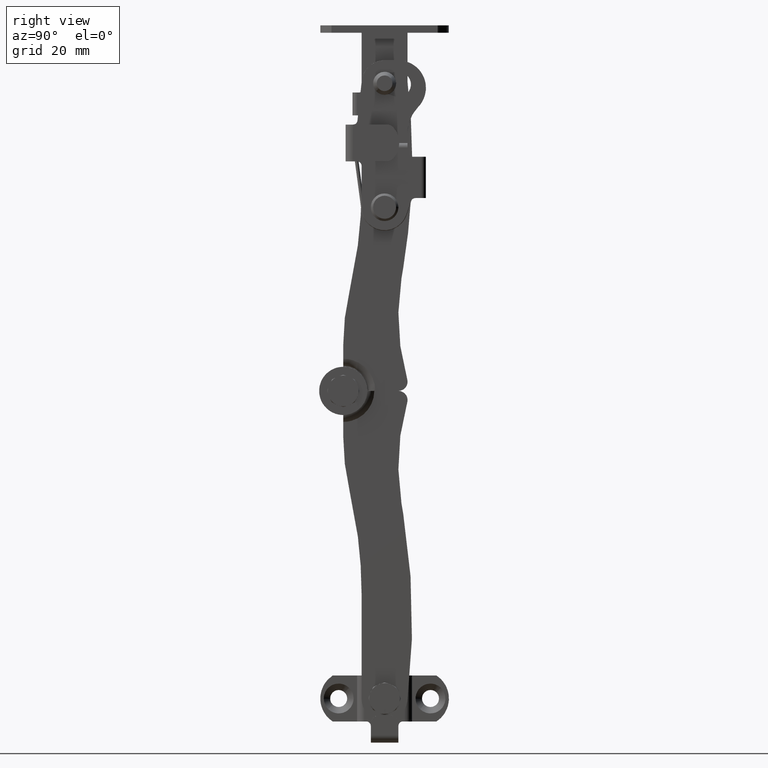
[diagram: clean part render]
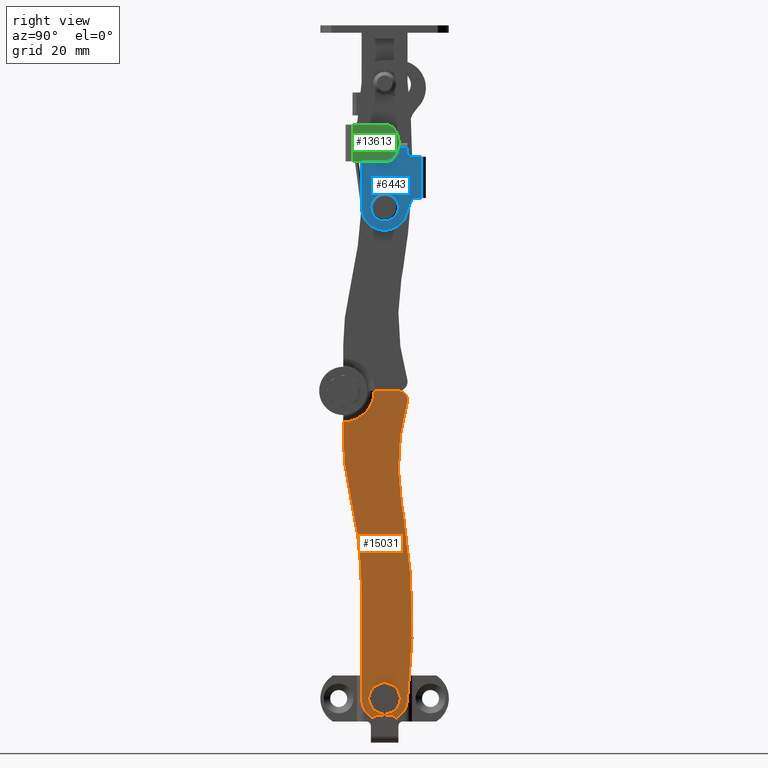
[diagram: same view with three faces highlighted in distinct colors, each labeled with its STEP entity id]
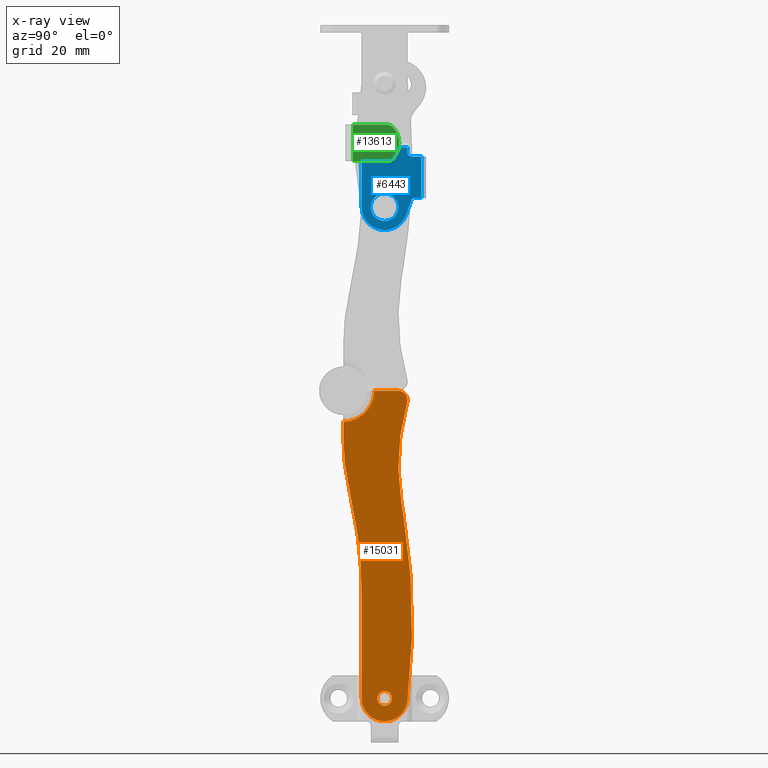
[diagram: x-ray of the same camera — body ghosted, the three highlighted faces saturated]
A machine part, right view with three faces highlighted in distinct colors.
The next image is the same camera in x-ray (body ghosted, the three faces saturated) — at least one of them is partly hidden behind the body in this view.
Their STEP definitions:

[orange] entity #15031 — the highlighted face is a freeform B-spline surface patch.
#14472=CARTESIAN_POINT('',(-3.169029E-010,-10.101381134666260,-65.839434653467549));
#14473=VERTEX_POINT('',#14472);
#14474=CARTESIAN_POINT('',(4.770490E-015,-10.600015391685330,-67.000040789392287));
#14475=VERTEX_POINT('',#14474);
#14476=CARTESIAN_POINT('',(-3.169029E-010,-10.101381134666260,-65.839434653467549));
#14477=CARTESIAN_POINT('',(-2.813395E-010,-10.238861737973220,-65.969678606335279));
#14478=CARTESIAN_POINT('',(-1.845579E-010,-10.499113599575050,-66.324120892770978));
#14479=CARTESIAN_POINT('',(-6.650476E-011,-10.600453356908231,-66.756464563541599));
#14480=CARTESIAN_POINT('',(4.770490E-015,-10.600015391685330,-67.000040789392287));
#14481=B_SPLINE_CURVE_WITH_KNOTS('',3,(#14476,#14477,#14478,#14479,#14480),.UNSPECIFIED.,.F.,.U.,(4,1,4),(0.000000161663289,0.568169746440144,1.298671892176562),.UNSPECIFIED.);
#14482=EDGE_CURVE('',#14473,#14475,#14481,.T.);
#14484=CARTESIAN_POINT('',(4.770490E-015,-9.000015391708480,-68.600032182344108));
#14485=VERTEX_POINT('',#14484);
#14486=CARTESIAN_POINT('',(4.770490E-015,-10.600015391685330,-67.000040789392287));
#14487=CARTESIAN_POINT('',(4.770490E-015,-10.600382991105320,-67.235734685484786));
#14488=CARTESIAN_POINT('',(4.770490E-015,-10.499872694923880,-67.680451893718242));
#14489=CARTESIAN_POINT('',(4.770490E-015,-10.118423913202600,-68.195010734420407));
#14490=CARTESIAN_POINT('',(4.770490E-015,-9.602007401112095,-68.521796163772976));
#14491=CARTESIAN_POINT('',(4.770490E-015,-9.209486720408329,-68.600247263814069));
#14492=CARTESIAN_POINT('',(4.770490E-015,-9.000015391708480,-68.600032182344108));
#14493=B_SPLINE_CURVE_WITH_KNOTS('',3,(#14486,#14487,#14488,#14489,#14490,#14491,#14492),.UNSPECIFIED.,.F.,.U.,(4,1,1,1,4),(0.000000512667430,0.706942690576745,1.335292474191123,1.885141136479035,2.513521361735005),.UNSPECIFIED.);
#14494=EDGE_CURVE('',#14475,#14485,#14493,.T.);
#14496=CARTESIAN_POINT('',(-3.169029E-010,-7.898649648750701,-68.160629711220651));
#14497=VERTEX_POINT('',#14496);
#14498=CARTESIAN_POINT('',(4.770490E-015,-9.000015391708480,-68.600032182344108));
#14499=CARTESIAN_POINT('',(-5.097098E-011,-8.822856744413079,-68.600129785540730));
#14500=CARTESIAN_POINT('',(-1.674700E-010,-8.417981840181314,-68.532088200488786));
#14501=CARTESIAN_POINT('',(-2.694148E-010,-8.063687522516517,-68.317688110143450));
#14502=CARTESIAN_POINT('',(-3.169029E-010,-7.898649648750701,-68.160629711220651));
#14503=B_SPLINE_CURVE_WITH_KNOTS('',3,(#14498,#14499,#14500,#14501,#14502),.UNSPECIFIED.,.F.,.U.,(4,1,4),(0.000000229337179,0.531521888385861,1.214862062338679),.UNSPECIFIED.);
#14504=EDGE_CURVE('',#14485,#14497,#14503,.T.);
#14571=CARTESIAN_POINT('',(4.770490E-015,-9.000015391708480,-65.400032182344091));
#14572=VERTEX_POINT('',#14571);
#14573=CARTESIAN_POINT('',(4.770490E-015,-9.000015391708480,-65.400032182344091));
#14574=CARTESIAN_POINT('',(-5.097230E-011,-9.177178630621137,-65.399931409473780));
#14575=CARTESIAN_POINT('',(-1.674658E-010,-9.582034578362686,-65.467987456163399));
#14576=CARTESIAN_POINT('',(-2.694189E-010,-9.936357518900206,-65.682363348895180));
#14577=CARTESIAN_POINT('',(-3.169029E-010,-10.101381134666260,-65.839434653467549));
#14578=B_SPLINE_CURVE_WITH_KNOTS('',3,(#14573,#14574,#14575,#14576,#14577),.UNSPECIFIED.,.F.,.U.,(4,1,4),(0.000000229337201,0.531521888385876,1.214862062338690),.UNSPECIFIED.);
#14579=EDGE_CURVE('',#14572,#14473,#14578,.T.);
#14614=CARTESIAN_POINT('',(4.770490E-015,-7.400015391731631,-67.000023575295884));
#14615=VERTEX_POINT('',#14614);
#14616=CARTESIAN_POINT('',(-3.169029E-010,-7.898649648750701,-68.160629711220651));
#14617=CARTESIAN_POINT('',(-2.712084E-010,-7.721664788273344,-67.993282759291048));
#14618=CARTESIAN_POINT('',(-1.698728E-010,-7.477809309449411,-67.622162348807393));
#14619=CARTESIAN_POINT('',(-5.170620E-011,-7.399856839819897,-67.189403398889240));
#14620=CARTESIAN_POINT('',(4.770490E-015,-7.400015391731631,-67.000023575295884));
#14621=B_SPLINE_CURVE_WITH_KNOTS('',3,(#14616,#14617,#14618,#14619,#14620),.UNSPECIFIED.,.F.,.U.,(4,1,4),(0.000000161663341,0.730502306832661,1.298671892176588),.UNSPECIFIED.);
#14622=EDGE_CURVE('',#14497,#14615,#14621,.T.);
#14624=CARTESIAN_POINT('',(4.770490E-015,-7.400015391731631,-67.000023575295884));
#14625=CARTESIAN_POINT('',(4.770490E-015,-7.399974320289728,-66.842957962304581));
#14626=CARTESIAN_POINT('',(4.770490E-015,-7.450457050193041,-66.502589975329045));
#14627=CARTESIAN_POINT('',(4.770490E-015,-7.653508776153688,-66.099197033571357));
#14628=CARTESIAN_POINT('',(4.770490E-015,-7.971560504007705,-65.748313140899768));
#14629=CARTESIAN_POINT('',(4.770490E-015,-8.397992024075187,-65.478247582706601));
#14630=CARTESIAN_POINT('',(4.770490E-015,-8.790549518731153,-65.399818241694987));
#14631=CARTESIAN_POINT('',(4.770490E-015,-9.000015391708480,-65.400032182344091));
#14632=B_SPLINE_CURVE_WITH_KNOTS('',3,(#14624,#14625,#14626,#14627,#14628,#14629,#14630,#14631),.UNSPECIFIED.,.F.,.U.,(4,1,1,1,1,4),(0.000000512668193,0.471258806611212,1.021155184618115,1.335292474191945,1.885141136479472,2.513521361734917),.UNSPECIFIED.);
#14633=EDGE_CURVE('',#14615,#14572,#14632,.T.);
#14654=CARTESIAN_POINT('',(4.770490E-015,-18.000002318121751,-10.090806635435460));
#14655=VERTEX_POINT('',#14654);
#14670=CARTESIAN_POINT('',(4.770490E-015,-16.666680639707049,-21.560564859123598));
#14671=VERTEX_POINT('',#14670);
#14677=CARTESIAN_POINT('',(4.770490E-015,-16.666680639707049,-21.560564859123598));
#14678=CARTESIAN_POINT('',(4.770490E-015,-17.552133862020110,-17.805902403166520));
#14679=CARTESIAN_POINT('',(4.770490E-015,-18.000454937029641,-13.948454851815240));
#14680=CARTESIAN_POINT('',(4.770490E-015,-18.000002318121751,-10.090806635435460));
#14681=B_SPLINE_CURVE_WITH_KNOTS('',3,(#14677,#14678,#14679,#14680),.UNSPECIFIED.,.F.,.U.,(4,4),(3.791424E-009,11.572835661507220),.UNSPECIFIED.);
#14682=EDGE_CURVE('',#14671,#14655,#14681,.T.);
#14701=CARTESIAN_POINT('',(4.770490E-015,-14.000037282844760,-44.500000243946552));
#14702=VERTEX_POINT('',#14701);
#14703=CARTESIAN_POINT('',(4.770490E-015,-16.666680639707049,-21.560564859123598));
#14704=CARTESIAN_POINT('',(4.770490E-015,-14.895912679180469,-29.069883322822889));
#14705=CARTESIAN_POINT('',(4.770490E-015,-13.999001490608769,-36.784716813795683));
#14706=CARTESIAN_POINT('',(4.770490E-015,-14.000037282844760,-44.500000243946552));
#14707=B_SPLINE_CURVE_WITH_KNOTS('',3,(#14703,#14704,#14705,#14706),.UNSPECIFIED.,.F.,.U.,(4,4),(2.266344E-009,23.145552420831269),.UNSPECIFIED.);
#14708=EDGE_CURVE('',#14671,#14702,#14707,.T.);
#14741=CARTESIAN_POINT('',(4.770490E-015,-14.000042451703299,-67.000016511367505));
#14742=VERTEX_POINT('',#14741);
#14748=CARTESIAN_POINT('',(4.770490E-015,-14.000042451703299,-67.000016511367505));
#14749=CARTESIAN_POINT('',(4.770490E-015,-14.000037282844760,-44.500000243946552));
#14750=QUASI_UNIFORM_CURVE('',1,(#14748,#14749),.UNSPECIFIED.,.F.,.U.);
#14751=EDGE_CURVE('',#14742,#14702,#14750,.T.);
#14783=CARTESIAN_POINT('',(4.770490E-015,-11.530428974307000,-71.312461855439409));
#14784=VERTEX_POINT('',#14783);
#14790=CARTESIAN_POINT('',(4.770490E-015,-11.530428974307000,-71.312461855439409));
#14791=CARTESIAN_POINT('',(4.770490E-015,-11.880881092162801,-71.106868748083258));
#14792=CARTESIAN_POINT('',(4.770490E-015,-12.618203354760940,-70.543567653262073));
#14793=CARTESIAN_POINT('',(4.770490E-015,-13.455354965341691,-69.423906515813613));
#14794=CARTESIAN_POINT('',(4.770490E-015,-13.913939474963771,-68.164799966466745));
#14795=CARTESIAN_POINT('',(4.770490E-015,-14.000070353562570,-67.352150198545999));
#14796=CARTESIAN_POINT('',(4.770490E-015,-14.000042451703299,-67.000016511367505));
#14797=B_SPLINE_CURVE_WITH_KNOTS('',3,(#14790,#14791,#14792,#14793,#14794,#14795,#14796),.UNSPECIFIED.,.F.,.U.,(4,1,1,1,4),(0.000000205138576,1.218957815073553,2.762955643235162,4.144464435657448,5.200889753935459),.UNSPECIFIED.);
#14798=EDGE_CURVE('',#14784,#14742,#14797,.T.);
#14829=CARTESIAN_POINT('',(4.770490E-015,-6.469608432589420,-71.312455179023004));
#14830=VERTEX_POINT('',#14829);
#14836=CARTESIAN_POINT('',(4.770490E-015,-6.469608432589420,-71.312455179023004));
#14837=CARTESIAN_POINT('',(4.770490E-015,-6.970014572150884,-71.606587104669103));
#14838=CARTESIAN_POINT('',(4.770490E-015,-7.864190639825106,-71.938845419047766));
#14839=CARTESIAN_POINT('',(4.770490E-015,-9.056201732663302,-72.027794638816090));
#14840=CARTESIAN_POINT('',(4.770490E-015,-10.241038546073820,-71.899690368781336));
#14841=CARTESIAN_POINT('',(4.770490E-015,-11.030020154780990,-71.606632566703382));
#14842=CARTESIAN_POINT('',(4.770490E-015,-11.530428974307000,-71.312461855439409));
#14843=B_SPLINE_CURVE_WITH_KNOTS('',3,(#14836,#14837,#14838,#14839,#14840,#14841,#14842),.UNSPECIFIED.,.F.,.U.,(4,1,1,1,4),(0.000000200908778,1.741186301556527,2.819008347664751,3.565238639671771,5.306422078688137),.UNSPECIFIED.);
#14844=EDGE_CURVE('',#14830,#14784,#14843,.T.);
#14875=CARTESIAN_POINT('',(4.770490E-015,-4.035986853081266,-67.598702064876790));
#14876=VERTEX_POINT('',#14875);
#14882=CARTESIAN_POINT('',(4.770490E-015,-4.035986853081266,-67.598702064876790));
#14883=CARTESIAN_POINT('',(4.770490E-015,-4.110048555625188,-68.217396057278719));
#14884=CARTESIAN_POINT('',(4.770490E-015,-4.420320973882275,-69.193193359801569));
#14885=CARTESIAN_POINT('',(4.770490E-015,-5.303322791583129,-70.459525063423939));
#14886=CARTESIAN_POINT('',(4.770490E-015,-6.014764315189909,-71.045891157623146));
#14887=CARTESIAN_POINT('',(4.770490E-015,-6.469608432589420,-71.312455179023004));
#14888=B_SPLINE_CURVE_WITH_KNOTS('',3,(#14882,#14883,#14884,#14885,#14886,#14887),.UNSPECIFIED.,.F.,.U.,(4,1,1,4),(0.000000118583826,1.869119729953799,3.019283078163709,4.600846739151380),.UNSPECIFIED.);
#14889=EDGE_CURVE('',#14876,#14830,#14888,.T.);
#14919=CARTESIAN_POINT('',(4.770490E-015,-4.929102881336751,-26.865036157473750));
#14920=VERTEX_POINT('',#14919);
#14926=CARTESIAN_POINT('',(4.770490E-015,-4.929102881336751,-26.865036157473750));
#14927=CARTESIAN_POINT('',(4.770490E-015,-3.712882890317582,-34.217339414262490));
#14928=CARTESIAN_POINT('',(4.770490E-015,-2.536542216191640,-47.834553044198202));
#14929=CARTESIAN_POINT('',(4.770490E-015,-3.296462406729098,-61.468461121060272));
#14930=CARTESIAN_POINT('',(4.770490E-015,-4.035986853081266,-67.598702064876790));
#14931=B_SPLINE_CURVE_WITH_KNOTS('',3,(#14926,#14927,#14928,#14929,#14930),.UNSPECIFIED.,.F.,.U.,(4,1,4),(3.118892E-009,22.356581613967069,40.880633748941797),.UNSPECIFIED.);
#14932=EDGE_CURVE('',#14920,#14876,#14931,.T.);
#14937=CARTESIAN_POINT('',(0.0,-2.251425842230680,-75.596428653863143));
#14938=CARTESIAN_POINT('',(0.0,-18.749220650658010,-75.596428653863143));
#14939=CARTESIAN_POINT('',(0.0,-2.251425842230680,3.596404424893781));
#14940=CARTESIAN_POINT('',(0.0,-18.749220650658010,3.596404424893781));
#14941=B_SPLINE_SURFACE_WITH_KNOTS('',1,1,((#14937,#14939),(#14938,#14940)),.UNSPECIFIED.,.F.,.F.,.U.,(2,2),(2,2),(0.0,16.497794808427329),(0.0,79.192833078756919),.UNSPECIFIED.);
#14942=CARTESIAN_POINT('',(-0.000007832900026,-17.999999999999449,-6.751801363935800));
#14943=VERTEX_POINT('',#14942);
#14944=CARTESIAN_POINT('',(4.770490E-015,-18.000002318121751,-10.090806635435460));
#14945=CARTESIAN_POINT('',(-0.000007832900026,-17.999999999999449,-6.751801363935800));
#14946=QUASI_UNIFORM_CURVE('',1,(#14944,#14945),.UNSPECIFIED.,.F.,.U.);
#14947=EDGE_CURVE('',#14655,#14943,#14946,.T.);
#14948=ORIENTED_EDGE('',*,*,#14947,.F.);
#14949=ORIENTED_EDGE('',*,*,#14682,.F.);
#14950=ORIENTED_EDGE('',*,*,#14708,.T.);
#14951=ORIENTED_EDGE('',*,*,#14751,.F.);
#14952=ORIENTED_EDGE('',*,*,#14798,.F.);
#14953=ORIENTED_EDGE('',*,*,#14844,.F.);
#14954=ORIENTED_EDGE('',*,*,#14889,.F.);
#14955=ORIENTED_EDGE('',*,*,#14932,.F.);
#14956=CARTESIAN_POINT('',(4.770490E-015,-5.330153308003991,-24.439594119586349));
#14957=VERTEX_POINT('',#14956);
#14958=CARTESIAN_POINT('',(4.770490E-015,-5.330153308003991,-24.439594119586349));
#14959=CARTESIAN_POINT('',(4.770490E-015,-4.929102881336751,-26.865036157473750));
#14960=QUASI_UNIFORM_CURVE('',1,(#14958,#14959),.UNSPECIFIED.,.F.,.U.);
#14961=EDGE_CURVE('',#14957,#14920,#14960,.T.);
#14962=ORIENTED_EDGE('',*,*,#14961,.F.);
#14963=CARTESIAN_POINT('',(4.770490E-015,-4.076922621813956,-2.549340318527680));
#14964=VERTEX_POINT('',#14963);
#14965=CARTESIAN_POINT('',(4.770490E-015,-5.330153308003991,-24.439594119586349));
#14966=CARTESIAN_POINT('',(4.770490E-015,-5.687029941553019,-22.281367857137681));
#14967=CARTESIAN_POINT('',(4.770490E-015,-6.196534579934687,-17.114184000755600));
#14968=CARTESIAN_POINT('',(4.770490E-015,-5.773617841232347,-9.728012864676449));
#14969=CARTESIAN_POINT('',(4.770490E-015,-4.677798929789251,-4.652734445573548));
#14970=CARTESIAN_POINT('',(4.770490E-015,-4.076922621813956,-2.549340318527680));
#14971=B_SPLINE_CURVE_WITH_KNOTS('',3,(#14965,#14966,#14967,#14968,#14969,#14970),.UNSPECIFIED.,.F.,.U.,(4,1,1,4),(0.000000013429784,6.562646736432173,15.543093248042920,22.105739971045239),.UNSPECIFIED.);
#14972=EDGE_CURVE('',#14957,#14964,#14971,.T.);
#14973=ORIENTED_EDGE('',*,*,#14972,.T.);
#14974=CARTESIAN_POINT('',(4.770490E-015,-6.000000271738520,-0.000002871522284));
#14975=VERTEX_POINT('',#14974);
#14976=CARTESIAN_POINT('',(4.770490E-015,-6.000000271738520,-0.000002871522284));
#14977=CARTESIAN_POINT('',(4.770490E-015,-5.653084228937604,0.000857446178800));
#14978=CARTESIAN_POINT('',(4.770490E-015,-5.095554458461608,-0.149051117737914));
#14979=CARTESIAN_POINT('',(4.770490E-015,-4.442678473846486,-0.675856096892519));
#14980=CARTESIAN_POINT('',(4.770490E-015,-4.114354379050404,-1.235198318056797));
#14981=CARTESIAN_POINT('',(4.770490E-015,-3.971147589095962,-1.898672106427948));
#14982=CARTESIAN_POINT('',(4.770490E-015,-4.007932460492933,-2.308611195289844));
#14983=CARTESIAN_POINT('',(4.770490E-015,-4.076922621813956,-2.549340318527680));
#14984=B_SPLINE_CURVE_WITH_KNOTS('',3,(#14976,#14977,#14978,#14979,#14980,#14981,#14982,#14983),.UNSPECIFIED.,.F.,.U.,(4,1,1,1,1,4),(0.000000966410734,1.040128378470576,1.675765706768312,2.484723426449078,2.947024099261880,3.698211358555845),.UNSPECIFIED.);
#14985=EDGE_CURVE('',#14975,#14964,#14984,.T.);
#14986=ORIENTED_EDGE('',*,*,#14985,.F.);
#14987=CARTESIAN_POINT('',(4.770490E-015,-11.248198509593900,-0.000000839383811));
#14988=VERTEX_POINT('',#14987);
#14989=CARTESIAN_POINT('',(4.770490E-015,-11.248198509593900,-0.000000839383811));
#14990=CARTESIAN_POINT('',(4.770490E-015,-6.000000271738520,-0.000002871522284));
#14991=QUASI_UNIFORM_CURVE('',1,(#14989,#14990),.UNSPECIFIED.,.F.,.U.);
#14992=EDGE_CURVE('',#14988,#14975,#14991,.T.);
#14993=ORIENTED_EDGE('',*,*,#14992,.F.);
#14994=CARTESIAN_POINT('',(-0.000007832659709,-11.250000575985901,0.000001206066358));
#14995=VERTEX_POINT('',#14994);
#14996=CARTESIAN_POINT('',(4.770490E-015,-11.248198509593900,-0.000000839383811));
#14997=CARTESIAN_POINT('',(-0.000007832659709,-11.250000575985901,0.000001206066358));
#14998=QUASI_UNIFORM_CURVE('',1,(#14996,#14997),.UNSPECIFIED.,.F.,.U.);
#14999=EDGE_CURVE('',#14988,#14995,#14998,.T.);
#15000=ORIENTED_EDGE('',*,*,#14999,.T.);
#15001=CARTESIAN_POINT('',(-0.000007832659709,-17.999999999999449,-6.750000630079899));
#15002=VERTEX_POINT('',#15001);
#15003=CARTESIAN_POINT('',(-0.000007832659709,-11.250000575985901,0.000001206066358));
#15004=CARTESIAN_POINT('',(-0.000007832659709,-11.249610166373740,-0.717955788244514));
#15005=CARTESIAN_POINT('',(-0.000007832659709,-11.436827952727890,-1.877370847637179));
#15006=CARTESIAN_POINT('',(-0.000007832659709,-12.089071217059050,-3.348538840641682));
#15007=CARTESIAN_POINT('',(-0.000007832659709,-12.855887032836030,-4.437339425768907));
#15008=CARTESIAN_POINT('',(-0.000007832659709,-13.820401080343220,-5.355653286209710));
#15009=CARTESIAN_POINT('',(-0.000007832659709,-14.851787994322660,-6.008706713942234));
#15010=CARTESIAN_POINT('',(-0.000007832659709,-16.233067314233359,-6.580999540655021));
#15011=CARTESIAN_POINT('',(-0.000007832659709,-17.282041121404031,-6.750384592081543));
#15012=CARTESIAN_POINT('',(-0.000007832659709,-17.999999999999449,-6.750000630079899));
#15013=B_SPLINE_CURVE_WITH_KNOTS('',3,(#15003,#15004,#15005,#15006,#15007,#15008,#15009,#15010,#15011,#15012),.UNSPECIFIED.,.F.,.U.,(4,1,1,1,1,1,1,4),(0.000000183632917,2.153751752513303,3.479190797617910,4.804590236585066,6.129883049389590,7.455320022936687,8.449393460536504,10.603142264013970),.UNSPECIFIED.);
#15014=EDGE_CURVE('',#14995,#15002,#15013,.T.);
#15015=ORIENTED_EDGE('',*,*,#15014,.T.);
#15016=CARTESIAN_POINT('',(-0.000007832900026,-17.999999999999449,-6.751801363935800));
#15017=CARTESIAN_POINT('',(-0.000007832659709,-17.999999999999449,-6.750000630079899));
#15018=QUASI_UNIFORM_CURVE('',1,(#15016,#15017),.UNSPECIFIED.,.F.,.U.);
#15019=EDGE_CURVE('',#14943,#15002,#15018,.T.);
#15020=ORIENTED_EDGE('',*,*,#15019,.F.);
#15021=EDGE_LOOP('',(#14948,#14949,#14950,#14951,#14952,#14953,#14954,#14955,#14962,#14973,#14986,#14993,#15000,#15015,#15020));
#15022=FACE_OUTER_BOUND('',#15021,.T.);
#15023=ORIENTED_EDGE('',*,*,#14494,.F.);
#15024=ORIENTED_EDGE('',*,*,#14482,.F.);
#15025=ORIENTED_EDGE('',*,*,#14579,.F.);
#15026=ORIENTED_EDGE('',*,*,#14633,.F.);
#15027=ORIENTED_EDGE('',*,*,#14622,.F.);
#15028=ORIENTED_EDGE('',*,*,#14504,.F.);
#15029=EDGE_LOOP('',(#15023,#15024,#15025,#15026,#15027,#15028));
#15030=FACE_BOUND('',#15029,.T.);
#15031=ADVANCED_FACE('',(#15022,#15030),#14941,.F.);

[blue] entity #6443 — the highlighted face is a freeform B-spline surface patch.
#4598=CARTESIAN_POINT('',(3.600001206065520,-6.897271417921060,37.860247158540439));
#4599=VERTEX_POINT('',#4598);
#4605=CARTESIAN_POINT('',(3.600001206065520,-6.000000000006360,39.999993523953073));
#4606=VERTEX_POINT('',#4605);
#4607=CARTESIAN_POINT('',(3.600001206065520,-6.000000000006360,39.999993523953073));
#4608=CARTESIAN_POINT('',(3.600001206065519,-5.999468071649570,39.578045795436033));
#4609=CARTESIAN_POINT('',(3.600001206065518,-6.170487350024030,38.784457899668411));
#4610=CARTESIAN_POINT('',(3.600001206065521,-6.631497465623233,38.120965138813261));
#4611=CARTESIAN_POINT('',(3.600001206065520,-6.897271417921060,37.860247158540439));
#4612=B_SPLINE_CURVE_WITH_KNOTS('',3,(#4607,#4608,#4609,#4610,#4611),.UNSPECIFIED.,.F.,.U.,(4,1,4),(0.000000177420812,1.265617478583062,2.382430197776938),.UNSPECIFIED.);
#4613=EDGE_CURVE('',#4606,#4599,#4612,.T.);
#4615=CARTESIAN_POINT('',(3.600001206065520,-8.999999999999369,43.000000000059352));
#4616=VERTEX_POINT('',#4615);
#4617=CARTESIAN_POINT('',(3.600001206065520,-8.999999999999369,43.000000000059352));
#4618=CARTESIAN_POINT('',(3.600001206065520,-8.680913577861379,43.000167963355089));
#4619=CARTESIAN_POINT('',(3.600001206065521,-8.165626039610164,42.916945551070711));
#4620=CARTESIAN_POINT('',(3.600001206065524,-7.376383702621778,42.567273465765922));
#4621=CARTESIAN_POINT('',(3.600001206065505,-6.721782600736946,42.030066056295396));
#4622=CARTESIAN_POINT('',(3.600001206065549,-6.151025405722685,41.128631863407527));
#4623=CARTESIAN_POINT('',(3.600001206065492,-5.999446417003536,40.417331055390633));
#4624=CARTESIAN_POINT('',(3.600001206065520,-6.000000000006360,39.999993523953073));
#4625=B_SPLINE_CURVE_WITH_KNOTS('',3,(#4617,#4618,#4619,#4620,#4621,#4622,#4623,#4624),.UNSPECIFIED.,.F.,.U.,(4,1,1,1,1,4),(0.000000648144141,0.957219315694014,1.546306340140667,2.577123731811762,3.460744223480846,4.712510883227481),.UNSPECIFIED.);
#4626=EDGE_CURVE('',#4616,#4606,#4625,.T.);
#4628=CARTESIAN_POINT('',(3.600001206065520,-11.102728582077679,42.139752841578257));
#4629=VERTEX_POINT('',#4628);
#4630=CARTESIAN_POINT('',(3.600001206065520,-11.102728582077679,42.139752841578257));
#4631=CARTESIAN_POINT('',(3.600001206065528,-10.843232236800720,42.395178854884833));
#4632=CARTESIAN_POINT('',(3.600001206065512,-10.188861118365519,42.837048592182590));
#4633=CARTESIAN_POINT('',(3.600001206065518,-9.412668761105532,43.000487727653827));
#4634=CARTESIAN_POINT('',(3.600001206065520,-8.999999999999369,43.000000000059352));
#4635=B_SPLINE_CURVE_WITH_KNOTS('',3,(#4630,#4631,#4632,#4633,#4634),.UNSPECIFIED.,.F.,.U.,(4,1,4),(0.000000158677128,1.092266801393909,2.330071872733620),.UNSPECIFIED.);
#4636=EDGE_CURVE('',#4629,#4616,#4635,.T.);
#4666=CARTESIAN_POINT('',(3.600001206065520,-11.999999999992379,40.000006476165623));
#4667=VERTEX_POINT('',#4666);
#4668=CARTESIAN_POINT('',(3.600001206065520,-11.999999999992379,40.000006476165623));
#4669=CARTESIAN_POINT('',(3.600001206065524,-12.000087038055980,40.297806390448237));
#4670=CARTESIAN_POINT('',(3.600001206065516,-11.880929037232370,41.091956728758397));
#4671=CARTESIAN_POINT('',(3.600001206065521,-11.457750401697391,41.792525663419447));
#4672=CARTESIAN_POINT('',(3.600001206065520,-11.102728582077679,42.139752841578257));
#4673=B_SPLINE_CURVE_WITH_KNOTS('',3,(#4668,#4669,#4670,#4671,#4672),.UNSPECIFIED.,.F.,.U.,(4,1,4),(0.000000177420523,0.893440984998843,2.382430197776939),.UNSPECIFIED.);
#4674=EDGE_CURVE('',#4667,#4629,#4673,.T.);
#4676=CARTESIAN_POINT('',(3.600001206065520,-8.999999999999369,37.000000000059352));
#4677=VERTEX_POINT('',#4676);
#4678=CARTESIAN_POINT('',(3.600001206065520,-8.999999999999369,37.000000000059352));
#4679=CARTESIAN_POINT('',(3.600001206065518,-9.466489438776630,36.999201611695753));
#4680=CARTESIAN_POINT('',(3.600001206065529,-10.226558197682820,37.181121850748553));
#4681=CARTESIAN_POINT('',(3.600001206065512,-11.180116582929680,37.852679450538993));
#4682=CARTESIAN_POINT('',(3.600001206065532,-11.828339940041470,38.773121458756663));
#4683=CARTESIAN_POINT('',(3.600001206065502,-12.000509882128130,39.582691481075607));
#4684=CARTESIAN_POINT('',(3.600001206065520,-11.999999999992379,40.000006476165623));
#4685=B_SPLINE_CURVE_WITH_KNOTS('',3,(#4678,#4679,#4680,#4681,#4682,#4683,#4684),.UNSPECIFIED.,.F.,.U.,(4,1,1,1,4),(0.000000648143438,1.399037098499231,2.282719048839667,3.460744223480651,4.712510883227483),.UNSPECIFIED.);
#4686=EDGE_CURVE('',#4677,#4667,#4685,.T.);
#4688=CARTESIAN_POINT('',(3.600001206065520,-6.897271417921060,37.860247158540439));
#4689=CARTESIAN_POINT('',(3.600001206065535,-7.208509685616407,37.553518705156463));
#4690=CARTESIAN_POINT('',(3.600001206065498,-7.883614142183824,37.133313910353721));
#4691=CARTESIAN_POINT('',(3.600001206065529,-8.660186829684509,36.999825825818917));
#4692=CARTESIAN_POINT('',(3.600001206065520,-8.999999999999369,37.000000000059352));
#4693=B_SPLINE_CURVE_WITH_KNOTS('',3,(#4688,#4689,#4690,#4691,#4692),.UNSPECIFIED.,.F.,.U.,(4,1,4),(0.000000158675955,1.310635558875277,2.330071872733640),.UNSPECIFIED.);
#4694=EDGE_CURVE('',#4599,#4677,#4693,.T.);
#5066=CARTESIAN_POINT('',(3.600001206065415,-13.999999999999520,53.000000000083602));
#5067=VERTEX_POINT('',#5066);
#5077=CARTESIAN_POINT('',(3.600001206065415,-3.999999999999620,53.000000000083602));
#5078=VERTEX_POINT('',#5077);
#5079=CARTESIAN_POINT('',(3.600001206065415,-13.999999999999520,53.000000000083602));
#5080=CARTESIAN_POINT('',(3.600001206065415,-3.999999999999620,53.000000000083602));
#5081=QUASI_UNIFORM_CURVE('',1,(#5079,#5080),.UNSPECIFIED.,.F.,.U.);
#5082=EDGE_CURVE('',#5067,#5078,#5081,.T.);
#5215=CARTESIAN_POINT('',(3.600001206065415,-0.999999999999487,42.000000000186454));
#5216=VERTEX_POINT('',#5215);
#5235=CARTESIAN_POINT('',(3.600001206065415,-0.999999999999484,51.000000000095199));
#5236=VERTEX_POINT('',#5235);
#5247=CARTESIAN_POINT('',(3.600001206065415,-0.999999999999484,51.000000000095199));
#5248=CARTESIAN_POINT('',(3.600001206065415,-0.999999999999487,42.000000000186454));
#5249=QUASI_UNIFORM_CURVE('',1,(#5247,#5248),.UNSPECIFIED.,.F.,.U.);
#5250=EDGE_CURVE('',#5236,#5216,#5249,.T.);
#6063=CARTESIAN_POINT('',(3.600001206065410,-3.999999999999595,52.000000000095092));
#6064=VERTEX_POINT('',#6063);
#6070=CARTESIAN_POINT('',(3.600001206065410,-2.999999999999595,51.000000000095199));
#6071=VERTEX_POINT('',#6070);
#6072=CARTESIAN_POINT('',(3.600001206065410,-2.999999999999595,51.000000000095199));
#6073=CARTESIAN_POINT('',(3.600001206065409,-3.147314755032041,50.999771142253088));
#6074=CARTESIAN_POINT('',(3.600001206065413,-3.425243431590238,51.062581055235832));
#6075=CARTESIAN_POINT('',(3.600001206065413,-3.733407049971897,51.291055954904792));
#6076=CARTESIAN_POINT('',(3.600001206065411,-3.944738138750795,51.607461737919138));
#6077=CARTESIAN_POINT('',(3.600001206065405,-4.000235596506170,51.852688784578639));
#6078=CARTESIAN_POINT('',(3.600001206065410,-3.999999999999595,52.000000000095092));
#6079=B_SPLINE_CURVE_WITH_KNOTS('',3,(#6072,#6073,#6074,#6075,#6076,#6077,#6078),.UNSPECIFIED.,.F.,.U.,(4,1,1,1,4),(0.000001035569547,0.441839857584465,0.834502874643812,1.129115061550219,1.570953883565226),.UNSPECIFIED.);
#6080=EDGE_CURVE('',#6071,#6064,#6079,.T.);
#6101=CARTESIAN_POINT('',(3.600001206065415,-0.999999999999484,51.000000000095199));
#6102=CARTESIAN_POINT('',(3.600001206065410,-2.999999999999595,51.000000000095199));
#6103=QUASI_UNIFORM_CURVE('',1,(#6101,#6102),.UNSPECIFIED.,.F.,.U.);
#6104=EDGE_CURVE('',#5236,#6071,#6103,.T.);
#6139=CARTESIAN_POINT('',(3.600001206065410,-2.290994448727190,42.000000000186454));
#6140=VERTEX_POINT('',#6139);
#6141=CARTESIAN_POINT('',(3.600001206065410,-2.290994448727190,42.000000000186454));
#6142=CARTESIAN_POINT('',(3.600001206065415,-0.999999999999487,42.000000000186454));
#6143=QUASI_UNIFORM_CURVE('',1,(#6141,#6142),.UNSPECIFIED.,.F.,.U.);
#6144=EDGE_CURVE('',#6140,#5216,#6143,.T.);
#6176=CARTESIAN_POINT('',(3.600001206065410,-3.234643616041295,41.330947502107300));
#6177=VERTEX_POINT('',#6176);
#6178=CARTESIAN_POINT('',(3.600001206065410,-3.234643616041295,41.330947502107300));
#6179=CARTESIAN_POINT('',(3.600001206065411,-3.183832263389607,41.476598673892092));
#6180=CARTESIAN_POINT('',(3.600001206065411,-3.062773275696309,41.665288813224883));
#6181=CARTESIAN_POINT('',(3.600001206065409,-2.740126771218434,41.923413282182857));
#6182=CARTESIAN_POINT('',(3.600001206065404,-2.483966763267371,42.000684981652618));
#6183=CARTESIAN_POINT('',(3.600001206065410,-2.290994448727190,42.000000000186454));
#6184=B_SPLINE_CURVE_WITH_KNOTS('',3,(#6178,#6179,#6180,#6181,#6182,#6183),.UNSPECIFIED.,.F.,.U.,(4,1,1,4),(0.000000667038293,0.462620547860314,0.655254240937951,1.233565165935775),.UNSPECIFIED.);
#6185=EDGE_CURVE('',#6177,#6140,#6184,.T.);
#6202=CARTESIAN_POINT('',(3.600001206065410,-4.281754163429516,38.345262490455113));
#6203=VERTEX_POINT('',#6202);
#6204=CARTESIAN_POINT('',(3.600001206065410,-4.281754163429516,38.345262490455113));
#6205=CARTESIAN_POINT('',(3.600001206065410,-3.234643616041295,41.330947502107300));
#6206=QUASI_UNIFORM_CURVE('',1,(#6204,#6205),.UNSPECIFIED.,.F.,.U.);
#6207=EDGE_CURVE('',#6203,#6177,#6206,.T.);
#6237=CARTESIAN_POINT('',(3.600001206065410,-13.999999999999361,40.000000000059451));
#6238=VERTEX_POINT('',#6237);
#6239=CARTESIAN_POINT('',(3.600001206065410,-4.281754163429516,38.345262490455113));
#6240=CARTESIAN_POINT('',(3.600001206065413,-4.438721319327823,37.897344443497651));
#6241=CARTESIAN_POINT('',(3.600001206065408,-4.932394049862181,36.948217461400311));
#6242=CARTESIAN_POINT('',(3.600001206065413,-5.940431232796660,35.964086309443282));
#6243=CARTESIAN_POINT('',(3.600001206065405,-7.229046728447054,35.260937380758108));
#6244=CARTESIAN_POINT('',(3.600001206065416,-8.380235583705153,34.983309232113768));
#6245=CARTESIAN_POINT('',(3.600001206065401,-9.809758628907023,35.005168532061447));
#6246=CARTESIAN_POINT('',(3.600001206065424,-11.093067600531700,35.371600725468127));
#6247=CARTESIAN_POINT('',(3.600001206065391,-12.229081002898260,36.124375241191771));
#6248=CARTESIAN_POINT('',(3.600001206065430,-13.059648049667770,37.005497799494108));
#6249=CARTESIAN_POINT('',(3.600001206065396,-13.780782941166320,38.247798614015963));
#6250=CARTESIAN_POINT('',(3.600001206065420,-14.000713346403559,39.342669092834889));
#6251=CARTESIAN_POINT('',(3.600001206065410,-13.999999999999361,40.000000000059451));
#6252=B_SPLINE_CURVE_WITH_KNOTS('',3,(#6239,#6240,#6241,#6242,#6243,#6244,#6245,#6246,#6247,#6248,#6249,#6250,#6251),.UNSPECIFIED.,.F.,.U.,(4,1,1,1,1,1,1,1,1,1,4),(0.000001208345855,1.423962977116156,3.176793498743754,4.162737427855292,5.805988119791307,6.682372747581457,8.434896382851562,9.749420006624987,10.735373282312921,12.049995802851420,14.021706228840751),.UNSPECIFIED.);
#6253=EDGE_CURVE('',#6203,#6238,#6252,.T.);
#6379=CARTESIAN_POINT('',(3.600001206065410,-3.999999999999595,52.000000000095092));
#6380=CARTESIAN_POINT('',(3.600001206065415,-3.999999999999620,53.000000000083602));
#6381=QUASI_UNIFORM_CURVE('',1,(#6379,#6380),.UNSPECIFIED.,.F.,.U.);
#6382=EDGE_CURVE('',#6064,#5078,#6381,.T.);
#6406=CARTESIAN_POINT('',(3.600001206065415,-13.999999999999520,53.000000000083602));
#6407=CARTESIAN_POINT('',(3.600001206065410,-13.999999999999361,40.000000000059451));
#6408=QUASI_UNIFORM_CURVE('',1,(#6406,#6407),.UNSPECIFIED.,.F.,.U.);
#6409=EDGE_CURVE('',#5067,#6238,#6408,.T.);
#6418=CARTESIAN_POINT('',(3.600001206065415,-0.350650025196005,34.101571264827712));
#6419=CARTESIAN_POINT('',(3.600001206065415,-14.649350323490170,34.101571264827712));
#6420=CARTESIAN_POINT('',(3.600001206065415,-0.350650025196005,53.899068515059440));
#6421=CARTESIAN_POINT('',(3.600001206065415,-14.649350323490170,53.899068515059440));
#6422=B_SPLINE_SURFACE_WITH_KNOTS('',1,1,((#6418,#6420),(#6419,#6421)),.UNSPECIFIED.,.F.,.F.,.U.,(2,2),(2,2),(0.0,14.298700298294170),(0.0,19.797497250231739),.UNSPECIFIED.);
#6423=ORIENTED_EDGE('',*,*,#6104,.T.);
#6424=ORIENTED_EDGE('',*,*,#6080,.T.);
#6425=ORIENTED_EDGE('',*,*,#6382,.T.);
#6426=ORIENTED_EDGE('',*,*,#5082,.F.);
#6427=ORIENTED_EDGE('',*,*,#6409,.T.);
#6428=ORIENTED_EDGE('',*,*,#6253,.F.);
#6429=ORIENTED_EDGE('',*,*,#6207,.T.);
#6430=ORIENTED_EDGE('',*,*,#6185,.T.);
#6431=ORIENTED_EDGE('',*,*,#6144,.T.);
#6432=ORIENTED_EDGE('',*,*,#5250,.F.);
#6433=EDGE_LOOP('',(#6423,#6424,#6425,#6426,#6427,#6428,#6429,#6430,#6431,#6432));
#6434=FACE_OUTER_BOUND('',#6433,.T.);
#6435=ORIENTED_EDGE('',*,*,#4686,.T.);
#6436=ORIENTED_EDGE('',*,*,#4674,.T.);
#6437=ORIENTED_EDGE('',*,*,#4636,.T.);
#6438=ORIENTED_EDGE('',*,*,#4626,.T.);
#6439=ORIENTED_EDGE('',*,*,#4613,.T.);
#6440=ORIENTED_EDGE('',*,*,#4694,.T.);
#6441=EDGE_LOOP('',(#6435,#6436,#6437,#6438,#6439,#6440));
#6442=FACE_BOUND('',#6441,.T.);
#6443=ADVANCED_FACE('',(#6434,#6442),#6422,.F.);

[green] entity #13613 — the highlighted face is a freeform B-spline surface patch.
#13378=CARTESIAN_POINT('',(5.200000000000000,-15.900027059998250,58.000000000186297));
#13379=VERTEX_POINT('',#13378);
#13399=CARTESIAN_POINT('',(5.200000000000000,-15.900027059998250,50.000000000186112));
#13400=VERTEX_POINT('',#13399);
#13411=CARTESIAN_POINT('',(5.200000000000000,-15.900027059998250,50.000000000186112));
#13412=CARTESIAN_POINT('',(5.200000000000000,-15.900027059998250,58.000000000186297));
#13413=QUASI_UNIFORM_CURVE('',1,(#13411,#13412),.UNSPECIFIED.,.F.,.U.);
#13414=EDGE_CURVE('',#13400,#13379,#13413,.T.);
#13495=CARTESIAN_POINT('',(5.200000000000000,-7.073247097372140,50.666666666909300));
#13496=VERTEX_POINT('',#13495);
#13497=CARTESIAN_POINT('',(5.200000000000000,-8.563959082422571,50.000000000186112));
#13498=VERTEX_POINT('',#13497);
#13499=CARTESIAN_POINT('',(5.200000000000000,-7.073247097372140,50.666666666909300));
#13500=CARTESIAN_POINT('',(5.200000000000002,-7.283133239076665,50.431080907670250));
#13501=CARTESIAN_POINT('',(5.199999999999997,-7.758040468145682,50.104458179208322));
#13502=CARTESIAN_POINT('',(5.200000000000005,-8.318626788442403,49.999826747371877));
#13503=CARTESIAN_POINT('',(5.200000000000000,-8.563959082422571,50.000000000186112));
#13504=B_SPLINE_CURVE_WITH_KNOTS('',3,(#13499,#13500,#13501,#13502,#13503),.UNSPECIFIED.,.F.,.U.,(4,1,4),(0.000000198288226,0.946211427258887,1.682185746776383),.UNSPECIFIED.);
#13505=EDGE_CURVE('',#13496,#13498,#13504,.T.);
#13535=CARTESIAN_POINT('',(5.200000000000000,-7.073247097625790,57.333333333576398));
#13536=VERTEX_POINT('',#13535);
#13537=CARTESIAN_POINT('',(5.200000000000000,-7.073247097625790,57.333333333576398));
#13538=CARTESIAN_POINT('',(5.200000000000000,-6.616341987393200,56.823891209998592));
#13539=CARTESIAN_POINT('',(5.199999999999998,-6.112429185208845,55.949866198010923));
#13540=CARTESIAN_POINT('',(5.200000000000014,-5.784590337792011,54.537053370541379));
#13541=CARTESIAN_POINT('',(5.199999999999961,-5.784594492289274,53.424573678133783));
#13542=CARTESIAN_POINT('',(5.200000000000076,-6.128914532883093,52.014058253021084));
#13543=CARTESIAN_POINT('',(5.199999999999959,-6.641871872595788,51.147872307936048));
#13544=CARTESIAN_POINT('',(5.200000000000000,-7.073247097372140,50.666666666909300));
#13545=B_SPLINE_CURVE_WITH_KNOTS('',3,(#13537,#13538,#13539,#13540,#13541,#13542,#13543,#13544),.UNSPECIFIED.,.F.,.U.,(4,1,1,1,1,4),(0.000000429853773,2.052417541196696,2.964649194663366,4.332785880732505,5.359049544429266,7.297434645541644),.UNSPECIFIED.);
#13546=EDGE_CURVE('',#13536,#13496,#13545,.T.);
#13572=CARTESIAN_POINT('',(5.200000000000000,-8.563959082574849,58.000000000186198));
#13573=VERTEX_POINT('',#13572);
#13574=CARTESIAN_POINT('',(5.200000000000000,-8.563959082574849,58.000000000186198));
#13575=CARTESIAN_POINT('',(5.199999999999990,-8.213275631428678,58.000982840982502));
#13576=CARTESIAN_POINT('',(5.200000000000021,-7.653676875814602,57.848594414808808));
#13577=CARTESIAN_POINT('',(5.199999999999995,-7.213370858068486,57.490107440638418));
#13578=CARTESIAN_POINT('',(5.200000000000000,-7.073247097625790,57.333333333576398));
#13579=B_SPLINE_CURVE_WITH_KNOTS('',3,(#13574,#13575,#13576,#13577,#13578),.UNSPECIFIED.,.F.,.U.,(4,1,4),(0.000000198287047,1.051345717749877,1.682185746624287),.UNSPECIFIED.);
#13580=EDGE_CURVE('',#13573,#13536,#13579,.T.);
#13592=CARTESIAN_POINT('',(5.200000000000000,-5.295630968045559,58.399599984680762));
#13593=CARTESIAN_POINT('',(5.200000000000000,-16.404517606835721,58.399599984680762));
#13594=CARTESIAN_POINT('',(5.200000000000000,-5.295630968045559,49.600399801114932));
#13595=CARTESIAN_POINT('',(5.200000000000000,-16.404517606835721,49.600399801114932));
#13596=B_SPLINE_SURFACE_WITH_KNOTS('',1,1,((#13592,#13594),(#13593,#13595)),.UNSPECIFIED.,.F.,.F.,.U.,(2,2),(2,2),(0.0,11.108886638790160),(0.0,8.799200183565837),.UNSPECIFIED.);
#13597=CARTESIAN_POINT('',(5.200000000000000,-15.900027059998250,50.000000000186112));
#13598=CARTESIAN_POINT('',(5.200000000000000,-8.563959082422571,50.000000000186112));
#13599=QUASI_UNIFORM_CURVE('',1,(#13597,#13598),.UNSPECIFIED.,.F.,.U.);
#13600=EDGE_CURVE('',#13400,#13498,#13599,.T.);
#13601=ORIENTED_EDGE('',*,*,#13600,.T.);
#13602=ORIENTED_EDGE('',*,*,#13505,.F.);
#13603=ORIENTED_EDGE('',*,*,#13546,.F.);
#13604=ORIENTED_EDGE('',*,*,#13580,.F.);
#13605=CARTESIAN_POINT('',(5.200000000000000,-8.563959082574849,58.000000000186198));
#13606=CARTESIAN_POINT('',(5.200000000000000,-15.900027059998250,58.000000000186297));
#13607=QUASI_UNIFORM_CURVE('',1,(#13605,#13606),.UNSPECIFIED.,.F.,.U.);
#13608=EDGE_CURVE('',#13573,#13379,#13607,.T.);
#13609=ORIENTED_EDGE('',*,*,#13608,.T.);
#13610=ORIENTED_EDGE('',*,*,#13414,.F.);
#13611=EDGE_LOOP('',(#13601,#13602,#13603,#13604,#13609,#13610));
#13612=FACE_OUTER_BOUND('',#13611,.T.);
#13613=ADVANCED_FACE('',(#13612),#13596,.T.);